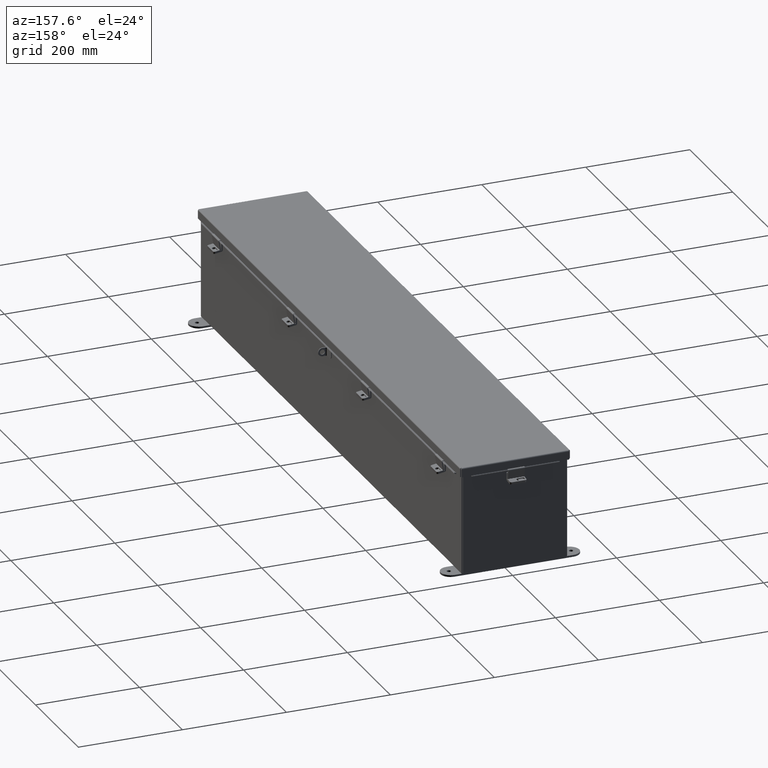
[diagram: clean part render]
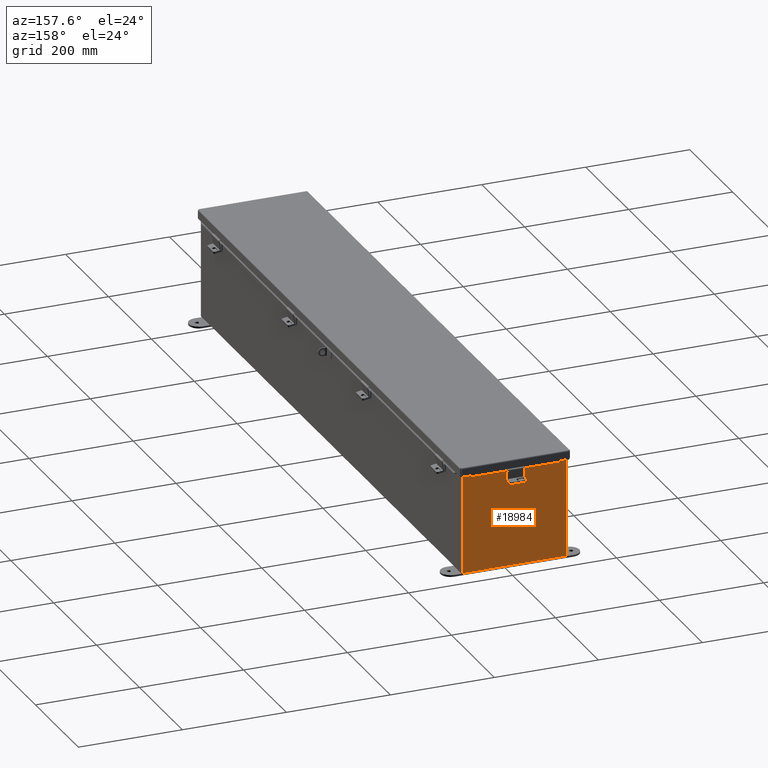
[diagram: same view with one face highlighted and labeled with its STEP entity id]
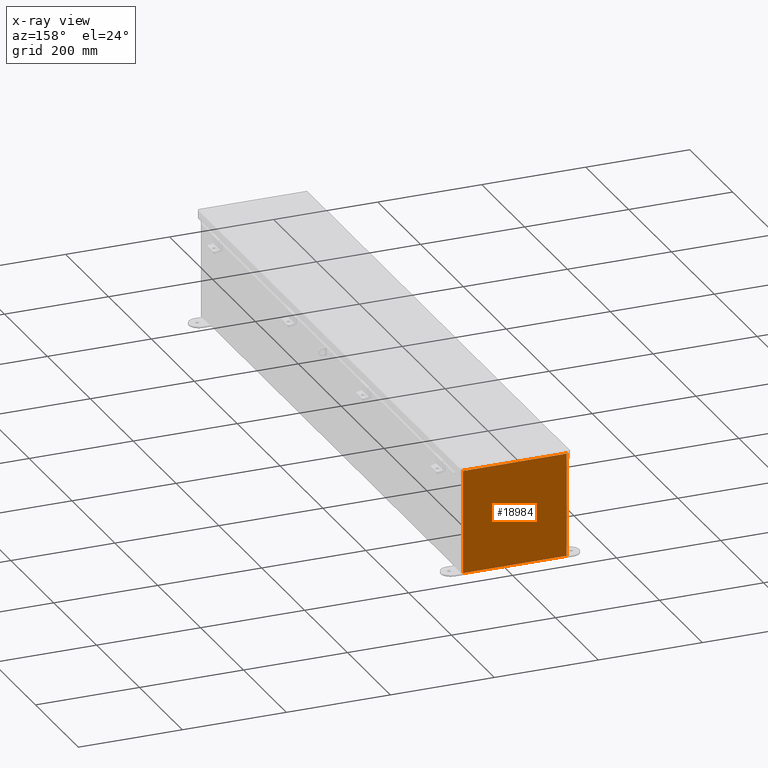
[diagram: x-ray of the same camera — body ghosted, the highlighted face saturated]
A machine part, auxiliary view. The second image highlights one B-rep face of the part: STEP entity #18984.
The next image is the same camera in x-ray: the body ghosted, the highlighted face saturated — about 0% of this face is hidden behind the body in this view.
In plain terms, the highlighted planar face has unit normal (0, -1, 0).
Its self-contained STEP definition (entity closure, byte-faithful):
#189 = EDGE_CURVE ( 'NONE', #32370, #33895, #15157, .T. ) ;
#310 = ORIENTED_EDGE ( 'NONE', *, *, #16198, .F. ) ;
#1740 = VECTOR ( 'NONE', #35556, 39.37007874015748100 ) ;
#1770 = ORIENTED_EDGE ( 'NONE', *, *, #9471, .T. ) ;
#1776 = CARTESIAN_POINT ( 'NONE',  ( -3.582300000000000000, 0.0000000000000000000, 0.0000000000000000000 ) ) ;
#1968 = CARTESIAN_POINT ( 'NONE',  ( 3.582299999999999200, 0.0000000000000000000, 3.912299999999998800 ) ) ;
#2036 = ORIENTED_EDGE ( 'NONE', *, *, #34092, .F. ) ;
#2173 = CARTESIAN_POINT ( 'NONE',  ( 3.582299999999999200, 0.0000000000000000000, 0.0000000000000000000 ) ) ;
#2497 = VECTOR ( 'NONE', #11445, 39.37007874015748100 ) ;
#2729 = CIRCLE ( 'NONE', #33075, 0.01867500000000003900 ) ;
#2938 = VECTOR ( 'NONE', #20376, 39.37007874015748100 ) ;
#3312 = DIRECTION ( 'NONE',  ( 0.0000000000000000000, -0.0000000000000000000, -1.000000000000000000 ) ) ;
#4603 = DIRECTION ( 'NONE',  ( 0.0000000000000000000, 0.0000000000000000000, -1.000000000000000000 ) ) ;
#5459 = ORIENTED_EDGE ( 'NONE', *, *, #32677, .F. ) ;
#5647 = ORIENTED_EDGE ( 'NONE', *, *, #18639, .T. ) ;
#6483 = CARTESIAN_POINT ( 'NONE',  ( -3.925300000000000500, 0.0000000000000000000, 3.925299999999999600 ) ) ;
#6916 = AXIS2_PLACEMENT_3D ( 'NONE', #10726, #30460, #13564 ) ;
#7020 = FACE_OUTER_BOUND ( 'NONE', #11694, .T. ) ;
#7254 = CARTESIAN_POINT ( 'NONE',  ( -3.582300000000000000, 0.0000000000000000000, 3.912299999999998800 ) ) ;
#7311 = LINE ( 'NONE', #8026, #14831 ) ;
#7878 = ORIENTED_EDGE ( 'NONE', *, *, #21727, .T. ) ;
#8026 = CARTESIAN_POINT ( 'NONE',  ( -3.925300000000000500, 0.0000000000000000000, 3.925299999999999600 ) ) ;
#8395 = CARTESIAN_POINT ( 'NONE',  ( -3.619650000000000500, 0.0000000000000000000, 3.925299999999999600 ) ) ;
#8424 = CARTESIAN_POINT ( 'NONE',  ( 3.619650000000000500, 0.0000000000000000000, 3.925299999999999600 ) ) ;
#8602 = CARTESIAN_POINT ( 'NONE',  ( -3.619650000000000500, 0.0000000000000000000, 0.0000000000000000000 ) ) ;
#8836 = VERTEX_POINT ( 'NONE', #8424 ) ;
#9007 = AXIS2_PLACEMENT_3D ( 'NONE', #11731, #20237, #3312 ) ;
#9027 = CARTESIAN_POINT ( 'NONE',  ( 3.619649999999915200, 0.0000000000000000000, -7.867722221753078700E-014 ) ) ;
#9257 = DIRECTION ( 'NONE',  ( -0.0000000000000000000, 1.000000000000000000, -0.0000000000000000000 ) ) ;
#9400 = CARTESIAN_POINT ( 'NONE',  ( 3.925299999999999100, 0.0000000000000000000, 3.925299999999999600 ) ) ;
#9471 = EDGE_CURVE ( 'NONE', #8836, #32370, #31263, .T. ) ;
#9890 = VERTEX_POINT ( 'NONE', #8395 ) ;
#10726 = CARTESIAN_POINT ( 'NONE',  ( 3.600974999999999100, 0.0000000000000000000, 3.874949999999999700 ) ) ;
#11445 = DIRECTION ( 'NONE',  ( 0.0000000000000000000, 0.0000000000000000000, 1.000000000000000000 ) ) ;
#11694 = EDGE_LOOP ( 'NONE', ( #310, #23112, #16426, #19512, #17132, #2036, #5459, #1770, #27111, #5647, #15100, #7878 ) ) ;
#11731 = CARTESIAN_POINT ( 'NONE',  ( 0.0000000000000000000, 0.0000000000000000000, 0.0000000000000000000 ) ) ;
#11915 = VECTOR ( 'NONE', #12013, 39.37007874015748100 ) ;
#12013 = DIRECTION ( 'NONE',  ( -1.000000000000000000, -0.0000000000000000000, -0.0000000000000000000 ) ) ;
#13477 = VERTEX_POINT ( 'NONE', #7254 ) ;
#13481 = VERTEX_POINT ( 'NONE', #35491 ) ;
#13564 = DIRECTION ( 'NONE',  ( 0.0000000000000000000, 0.0000000000000000000, -1.000000000000000000 ) ) ;
#14298 = VECTOR ( 'NONE', #16253, 39.37007874015748100 ) ;
#14745 = VERTEX_POINT ( 'NONE', #21733 ) ;
#14831 = VECTOR ( 'NONE', #30593, 39.37007874015748100 ) ;
#15100 = ORIENTED_EDGE ( 'NONE', *, *, #30457, .T. ) ;
#15157 = LINE ( 'NONE', #9400, #28410 ) ;
#15385 = VECTOR ( 'NONE', #20665, 39.37007874015748100 ) ;
#15793 = DIRECTION ( 'NONE',  ( 1.000000000000000000, 0.0000000000000000000, 0.0000000000000000000 ) ) ;
#15835 = CARTESIAN_POINT ( 'NONE',  ( -3.925300000000000500, 0.0000000000000000000, 3.925299999999999600 ) ) ;
#15953 = VERTEX_POINT ( 'NONE', #22142 ) ;
#16198 = EDGE_CURVE ( 'NONE', #26287, #9890, #18426, .T. ) ;
#16253 = DIRECTION ( 'NONE',  ( 0.0000000000000000000, 0.0000000000000000000, 1.000000000000000000 ) ) ;
#16426 = ORIENTED_EDGE ( 'NONE', *, *, #18318, .F. ) ;
#17132 = ORIENTED_EDGE ( 'NONE', *, *, #34615, .F. ) ;
#17138 = VECTOR ( 'NONE', #15793, 39.37007874015748100 ) ;
#18318 = EDGE_CURVE ( 'NONE', #13477, #30408, #21403, .T. ) ;
#18426 = LINE ( 'NONE', #8602, #2497 ) ;
#18639 = EDGE_CURVE ( 'NONE', #33895, #15953, #25179, .T. ) ;
#18984 = ADVANCED_FACE ( 'NONE', ( #7020 ), #28638, .F. ) ;
#19512 = ORIENTED_EDGE ( 'NONE', *, *, #31076, .T. ) ;
#19736 = LINE ( 'NONE', #9027, #2938 ) ;
#20237 = DIRECTION ( 'NONE',  ( 0.0000000000000000000, -1.000000000000000000, 0.0000000000000000000 ) ) ;
#20376 = DIRECTION ( 'NONE',  ( -2.170286390199978800E-014, 0.0000000000000000000, -1.000000000000000000 ) ) ;
#20665 = DIRECTION ( 'NONE',  ( 1.000000000000000000, 0.0000000000000000000, 0.0000000000000000000 ) ) ;
#21403 = LINE ( 'NONE', #1776, #29161 ) ;
#21727 = EDGE_CURVE ( 'NONE', #22613, #9890, #7311, .T. ) ;
#21733 = CARTESIAN_POINT ( 'NONE',  ( 3.619649999999999100, 0.0000000000000000000, 3.874949999999999700 ) ) ;
#22142 = CARTESIAN_POINT ( 'NONE',  ( -3.925300000000000500, 0.0000000000000000000, -3.925300000000000500 ) ) ;
#22613 = VERTEX_POINT ( 'NONE', #6483 ) ;
#23112 = ORIENTED_EDGE ( 'NONE', *, *, #27474, .F. ) ;
#23395 = LINE ( 'NONE', #15835, #1740 ) ;
#23483 = VERTEX_POINT ( 'NONE', #1968 ) ;
#23484 = CARTESIAN_POINT ( 'NONE',  ( 3.925299999999999100, 0.0000000000000000000, -3.925300000000000500 ) ) ;
#25179 = LINE ( 'NONE', #28924, #11915 ) ;
#25588 = LINE ( 'NONE', #35512, #17138 ) ;
#26176 = CARTESIAN_POINT ( 'NONE',  ( -3.600975000000000000, 0.0000000000000000000, 3.874949999999999700 ) ) ;
#26287 = VERTEX_POINT ( 'NONE', #30744 ) ;
#26335 = DIRECTION ( 'NONE',  ( 0.0000000000000000000, 0.0000000000000000000, -1.000000000000000000 ) ) ;
#27111 = ORIENTED_EDGE ( 'NONE', *, *, #189, .T. ) ;
#27474 = EDGE_CURVE ( 'NONE', #30408, #26287, #2729, .T. ) ;
#28410 = VECTOR ( 'NONE', #26335, 39.37007874015748100 ) ;
#28638 = PLANE ( 'NONE',  #9007 ) ;
#28924 = CARTESIAN_POINT ( 'NONE',  ( -3.925300000000000500, 0.0000000000000000000, -3.925300000000000500 ) ) ;
#28999 = DIRECTION ( 'NONE',  ( 0.0000000000000000000, 0.0000000000000000000, -1.000000000000000000 ) ) ;
#29161 = VECTOR ( 'NONE', #4603, 39.37007874015748100 ) ;
#29171 = CARTESIAN_POINT ( 'NONE',  ( -3.582300000000000000, 0.0000000000000000000, 3.874949999999999700 ) ) ;
#29312 = LINE ( 'NONE', #2173, #14298 ) ;
#30262 = CARTESIAN_POINT ( 'NONE',  ( 3.925299999999999100, 0.0000000000000000000, 3.925299999999999600 ) ) ;
#30408 = VERTEX_POINT ( 'NONE', #29171 ) ;
#30457 = EDGE_CURVE ( 'NONE', #15953, #22613, #23395, .T. ) ;
#30460 = DIRECTION ( 'NONE',  ( -0.0000000000000000000, 1.000000000000000000, -0.0000000000000000000 ) ) ;
#30593 = DIRECTION ( 'NONE',  ( 1.000000000000000000, 0.0000000000000000000, 0.0000000000000000000 ) ) ;
#30744 = CARTESIAN_POINT ( 'NONE',  ( -3.619650000000000500, 0.0000000000000000000, 3.874949999999999700 ) ) ;
#31076 = EDGE_CURVE ( 'NONE', #13477, #23483, #25588, .T. ) ;
#31095 = CIRCLE ( 'NONE', #6916, 0.01867500000000003900 ) ;
#31263 = LINE ( 'NONE', #34806, #15385 ) ;
#32370 = VERTEX_POINT ( 'NONE', #30262 ) ;
#32677 = EDGE_CURVE ( 'NONE', #8836, #14745, #19736, .T. ) ;
#33075 = AXIS2_PLACEMENT_3D ( 'NONE', #26176, #9257, #28999 ) ;
#33895 = VERTEX_POINT ( 'NONE', #23484 ) ;
#34092 = EDGE_CURVE ( 'NONE', #14745, #13481, #31095, .T. ) ;
#34615 = EDGE_CURVE ( 'NONE', #13481, #23483, #29312, .T. ) ;
#34806 = CARTESIAN_POINT ( 'NONE',  ( -3.925300000000000500, 0.0000000000000000000, 3.925299999999999600 ) ) ;
#35491 = CARTESIAN_POINT ( 'NONE',  ( 3.582299999999999200, 0.0000000000000000000, 3.874949999999999700 ) ) ;
#35512 = CARTESIAN_POINT ( 'NONE',  ( -3.582300000000000000, 0.0000000000000000000, 3.912299999999998800 ) ) ;
#35556 = DIRECTION ( 'NONE',  ( -0.0000000000000000000, -0.0000000000000000000, 1.000000000000000000 ) ) ;